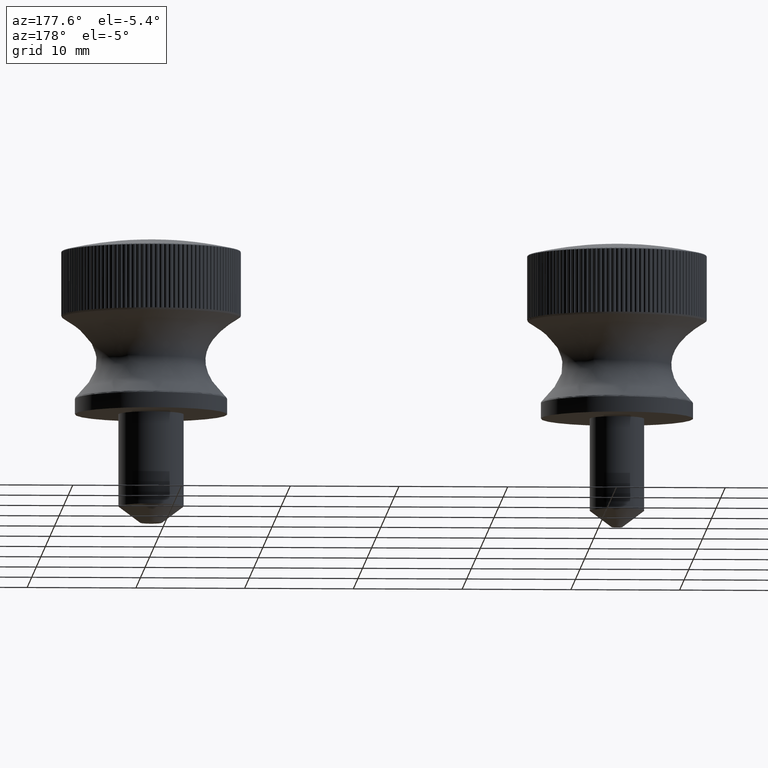
[diagram: clean part render]
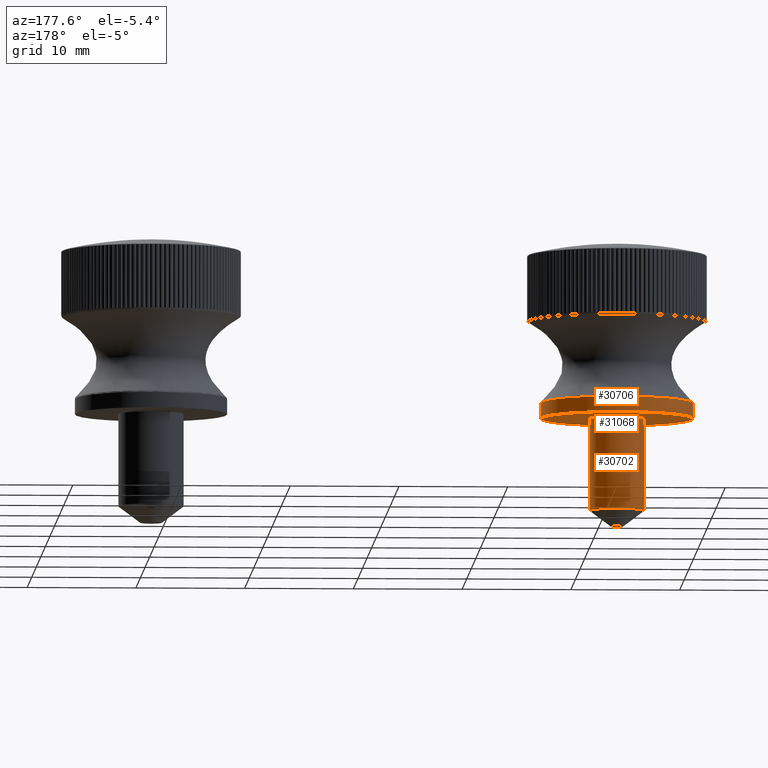
[diagram: same view with one multi-face feature highlighted, each face labeled with its STEP entity id]
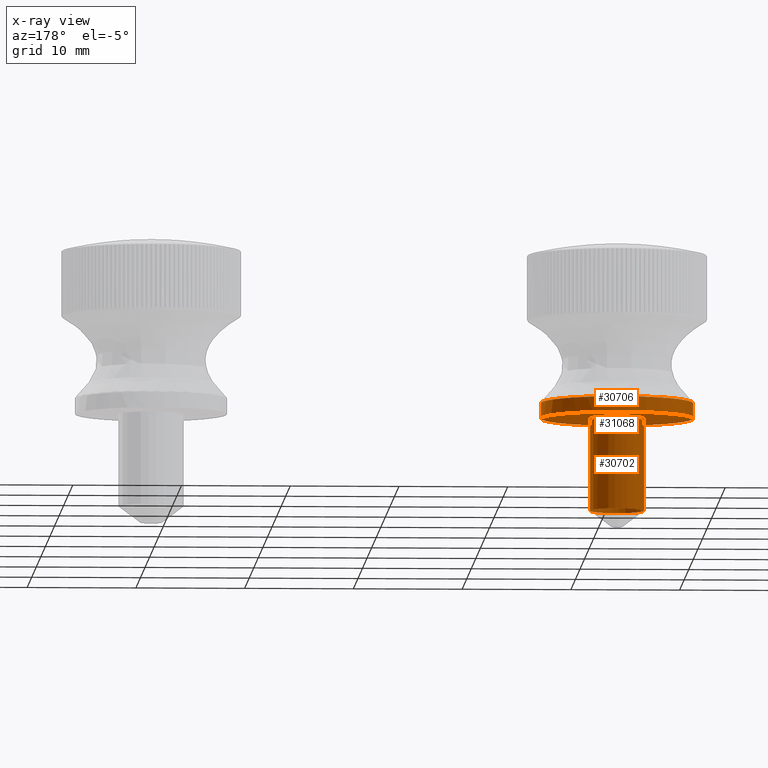
[diagram: x-ray of the same camera — body ghosted, the whole feature saturated]
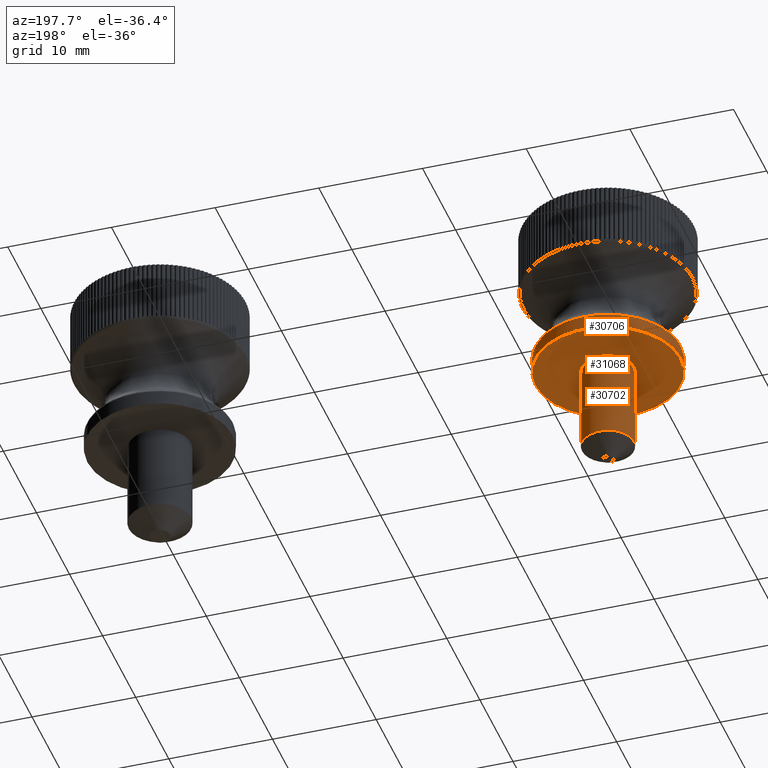
[diagram: same view with one multi-face feature highlighted, each face labeled with its STEP entity id]
A machine part, auxiliary view. The highlighted faces form ONE feature: a stepped (counterbored) hole: 2 coaxial cylindrical walls of radii 2.5 -> 7 mm joined by 1 annular planar shoulder face(s). The faces share edges in the B-rep.
The next image is the same camera in x-ray: the body ghosted and the whole hole feature saturated, so the bore chain is visible through the body.
A second angle (auxiliary view) of the same feature is appended — it is thin or edge-on in the first view.
Their STEP definitions:
[1] entity #30706 (Cylinder):
#2427=B_SPLINE_CURVE_WITH_KNOTS('',3,(#45495,#45496,#45497,#45498,#45499,
#45500,#45501,#45502,#45503,#45504),.UNSPECIFIED.,.T.,.F.,(4,1,1,1,1,1,
1,4),(-6.28318530717959,-5.38558740615393,-4.48798950512828,-3.59039160410262,
-2.69279370307697,-1.79519580205131,-0.897597901025655,0.),
 .UNSPECIFIED.);
#5094=CYLINDRICAL_SURFACE('',#32889,7.);
#6059=FACE_BOUND('',#8251,.T.);
#6070=FACE_OUTER_BOUND('',#8250,.T.);
#8250=EDGE_LOOP('',(#20580));
#8251=EDGE_LOOP('',(#20581));
#10433=CIRCLE('',#32890,7.);
#12605=VERTEX_POINT('',#45493);
#12607=VERTEX_POINT('',#45608);
#15505=EDGE_CURVE('',#12605,#12605,#2427,.T.);
#15509=EDGE_CURVE('',#12607,#12607,#10433,.T.);
#20580=ORIENTED_EDGE('',*,*,#15509,.F.);
#20581=ORIENTED_EDGE('',*,*,#15505,.F.);
#30706=ADVANCED_FACE('',(#6070,#6059),#5094,.T.);
#32889=AXIS2_PLACEMENT_3D('',#45607,#36764,#36765);
#32890=AXIS2_PLACEMENT_3D('',#45609,#36766,#36767);
#36764=DIRECTION('center_axis',(0.,0.,1.));
#36765=DIRECTION('ref_axis',(-1.,0.,0.));
#36766=DIRECTION('center_axis',(0.,0.,-1.));
#36767=DIRECTION('ref_axis',(-1.,0.,0.));
#45493=CARTESIAN_POINT('',(-7.,-1.38777878078145E-15,1.41249663361676));
#45495=CARTESIAN_POINT('Ctrl Pts',(-7.00478266111144,0.0001438007916501,
1.41249663361676));
#45496=CARTESIAN_POINT('Ctrl Pts',(-7.00506480613703,-2.0883691370907,1.41249663361676));
#45497=CARTESIAN_POINT('Ctrl Pts',(-4.99751914754448,-6.26836587127018,
1.41249663361676));
#45498=CARTESIAN_POINT('Ctrl Pts',(1.78199131951967,-7.8083750001124,1.41249663361676));
#45499=CARTESIAN_POINT('Ctrl Pts',(7.22314609309884,-3.47818575182502,1.41249663361676));
#45500=CARTESIAN_POINT('Ctrl Pts',(7.21596664615764,3.47474926270844,1.41249663361676));
#45501=CARTESIAN_POINT('Ctrl Pts',(1.78420728065221,7.81684498456431,1.41249663361676));
#45502=CARTESIAN_POINT('Ctrl Pts',(-4.99582627739093,6.26271175602392,1.41249663361676));
#45503=CARTESIAN_POINT('Ctrl Pts',(-7.00450051608585,2.088656738674,1.41249663361676));
#45504=CARTESIAN_POINT('Ctrl Pts',(-7.00478266111144,0.0001438007916501,
1.41249663361676));
#45607=CARTESIAN_POINT('Origin',(0.,0.,0.));
#45608=CARTESIAN_POINT('',(7.,8.57252759403147E-16,0.));
#45609=CARTESIAN_POINT('Origin',(0.,0.,0.));
[2] entity #30702 (Cylinder):
#5093=CYLINDRICAL_SURFACE('',#32885,2.5);
#6058=FACE_BOUND('',#8246,.T.);
#6066=FACE_OUTER_BOUND('',#8245,.T.);
#8245=EDGE_LOOP('',(#20569));
#8246=EDGE_LOOP('',(#20570));
#10429=CIRCLE('',#32883,2.5);
#10431=CIRCLE('',#32886,2.5);
#12601=VERTEX_POINT('',#45444);
#12603=VERTEX_POINT('',#45449);
#15501=EDGE_CURVE('',#12601,#12601,#10429,.T.);
#15503=EDGE_CURVE('',#12603,#12603,#10431,.T.);
#20569=ORIENTED_EDGE('',*,*,#15503,.F.);
#20570=ORIENTED_EDGE('',*,*,#15501,.F.);
#30702=ADVANCED_FACE('',(#6066,#6058),#5093,.T.);
#32883=AXIS2_PLACEMENT_3D('',#45445,#36752,#36753);
#32885=AXIS2_PLACEMENT_3D('',#45448,#36756,#36757);
#32886=AXIS2_PLACEMENT_3D('',#45450,#36758,#36759);
#36752=DIRECTION('center_axis',(0.,0.,-1.));
#36753=DIRECTION('ref_axis',(1.,0.,0.));
#36756=DIRECTION('center_axis',(0.,0.,-1.));
#36757=DIRECTION('ref_axis',(1.,0.,0.));
#36758=DIRECTION('center_axis',(0.,0.,1.));
#36759=DIRECTION('ref_axis',(1.,0.,0.));
#45444=CARTESIAN_POINT('',(-2.5,3.06161699786838E-16,-8.5));
#45445=CARTESIAN_POINT('Origin',(0.,0.,-8.5));
#45448=CARTESIAN_POINT('Origin',(0.,0.,0.));
#45449=CARTESIAN_POINT('',(-2.5,3.06161699786838E-16,0.));
#45450=CARTESIAN_POINT('Origin',(0.,0.,0.));
[3] entity #31068 (Plane):
#4970=PLANE('',#33732);
#6060=FACE_BOUND('',#8614,.T.);
#6432=FACE_OUTER_BOUND('',#8613,.T.);
#8613=EDGE_LOOP('',(#22627));
#8614=EDGE_LOOP('',(#22628));
#10431=CIRCLE('',#32886,2.5);
#10433=CIRCLE('',#32890,7.);
#12603=VERTEX_POINT('',#45449);
#12607=VERTEX_POINT('',#45608);
#15503=EDGE_CURVE('',#12603,#12603,#10431,.T.);
#15509=EDGE_CURVE('',#12607,#12607,#10433,.T.);
#22627=ORIENTED_EDGE('',*,*,#15509,.T.);
#22628=ORIENTED_EDGE('',*,*,#15503,.T.);
#31068=ADVANCED_FACE('',(#6432,#6060),#4970,.F.);
#32886=AXIS2_PLACEMENT_3D('',#45450,#36758,#36759);
#32890=AXIS2_PLACEMENT_3D('',#45609,#36766,#36767);
#33732=AXIS2_PLACEMENT_3D('',#50418,#38810,#38811);
#36758=DIRECTION('center_axis',(0.,0.,1.));
#36759=DIRECTION('ref_axis',(1.,0.,0.));
#36766=DIRECTION('center_axis',(0.,0.,-1.));
#36767=DIRECTION('ref_axis',(-1.,0.,0.));
#38810=DIRECTION('center_axis',(0.,0.,1.));
#38811=DIRECTION('ref_axis',(1.,0.,0.));
#45449=CARTESIAN_POINT('',(-2.5,3.06161699786838E-16,0.));
#45450=CARTESIAN_POINT('Origin',(0.,0.,0.));
#45608=CARTESIAN_POINT('',(7.,8.57252759403147E-16,0.));
#45609=CARTESIAN_POINT('Origin',(0.,0.,0.));
#50418=CARTESIAN_POINT('Origin',(-3.35776545337204E-16,1.32169407693471E-16,
0.));